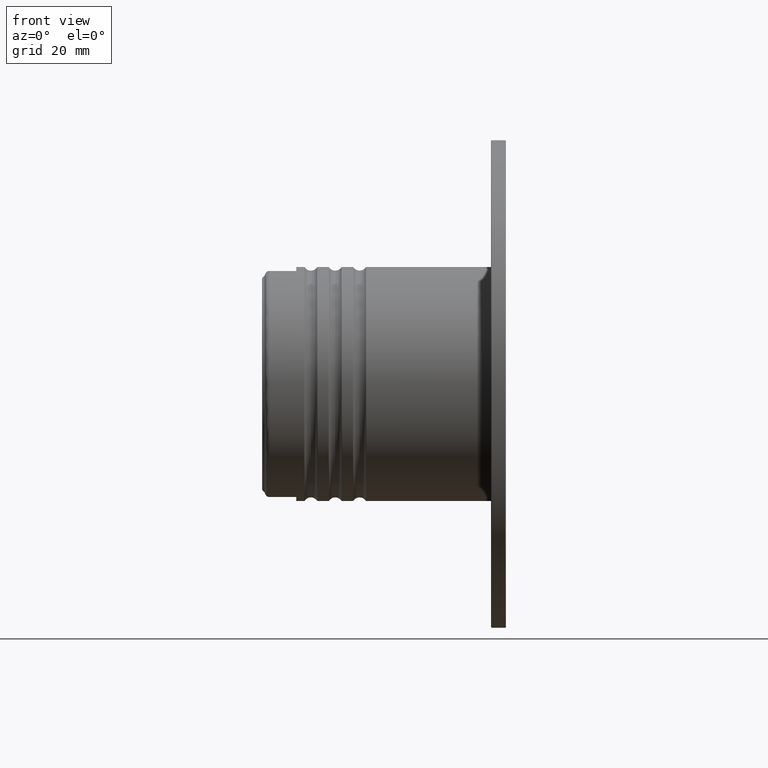
[diagram: clean part render]
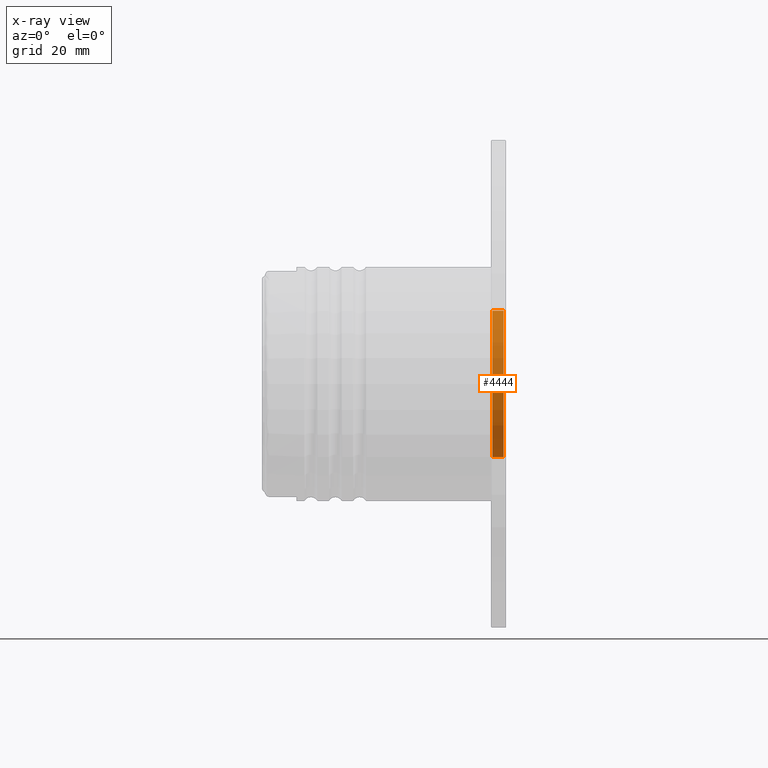
[diagram: x-ray — body ghosted, one internal face saturated and labeled with its STEP entity id]
A machine part, front view, then the same camera in x-ray: the body is ghosted and one INTERNAL B-rep face — a face not visible from any outside direction — is saturated and labeled: STEP entity #4444.
In plain terms, the highlighted cylindrical surface (partial cylindrical patch) has radius 15 mm, axis along (1, 0, 0).
Its self-contained STEP definition (entity closure, byte-faithful):
#541 = LINE ( 'NONE', #7155, #4712 ) ;
#946 = EDGE_CURVE ( 'NONE', #4936, #3952, #6172, .T. ) ;
#953 = CARTESIAN_POINT ( 'NONE',  ( -0.2000000000000000111, 0.0000000000000000000, 0.0000000000000000000 ) ) ;
#1272 = FACE_OUTER_BOUND ( 'NONE', #7010, .T. ) ;
#1397 = DIRECTION ( 'NONE',  ( 0.0000000000000000000, 0.0000000000000000000, -1.000000000000000000 ) ) ;
#1442 = AXIS2_PLACEMENT_3D ( 'NONE', #4267, #4702, #1397 ) ;
#1548 = DIRECTION ( 'NONE',  ( 1.000000000000000000, -0.0000000000000000000, -0.0000000000000000000 ) ) ;
#2043 = CARTESIAN_POINT ( 'NONE',  ( 0.0000000000000000000, 0.0000000000000000000, -15.00000000000000000 ) ) ;
#2874 = VECTOR ( 'NONE', #1548, 1000.000000000000000 ) ;
#2933 = CARTESIAN_POINT ( 'NONE',  ( -0.2000000000000000111, 1.836970198721029589E-15, 15.00000000000000000 ) ) ;
#2972 = ORIENTED_EDGE ( 'NONE', *, *, #5805, .T. ) ;
#3246 = EDGE_CURVE ( 'NONE', #3443, #3952, #6106, .T. ) ;
#3320 = AXIS2_PLACEMENT_3D ( 'NONE', #6803, #3535, #5199 ) ;
#3443 = VERTEX_POINT ( 'NONE', #6634 ) ;
#3535 = DIRECTION ( 'NONE',  ( 1.000000000000000000, -0.0000000000000000000, -0.0000000000000000000 ) ) ;
#3592 = ORIENTED_EDGE ( 'NONE', *, *, #3246, .T. ) ;
#3952 = VERTEX_POINT ( 'NONE', #6356 ) ;
#3999 = ORIENTED_EDGE ( 'NONE', *, *, #946, .F. ) ;
#4267 = CARTESIAN_POINT ( 'NONE',  ( -2.500000000000000000, 0.0000000000000000000, 0.0000000000000000000 ) ) ;
#4444 = ADVANCED_FACE ( 'NONE', ( #1272 ), #7115, .T. ) ;
#4701 = AXIS2_PLACEMENT_3D ( 'NONE', #953, #5421, #7055 ) ;
#4702 = DIRECTION ( 'NONE',  ( 1.000000000000000000, -0.0000000000000000000, -0.0000000000000000000 ) ) ;
#4712 = VECTOR ( 'NONE', #5020, 1000.000000000000000 ) ;
#4936 = VERTEX_POINT ( 'NONE', #2933 ) ;
#5020 = DIRECTION ( 'NONE',  ( 1.000000000000000000, -0.0000000000000000000, -0.0000000000000000000 ) ) ;
#5199 = DIRECTION ( 'NONE',  ( 0.0000000000000000000, 0.0000000000000000000, -1.000000000000000000 ) ) ;
#5421 = DIRECTION ( 'NONE',  ( 1.000000000000000000, -0.0000000000000000000, -0.0000000000000000000 ) ) ;
#5530 = CARTESIAN_POINT ( 'NONE',  ( -2.500000000000000000, 1.836970198721029589E-15, 15.00000000000000000 ) ) ;
#5805 = EDGE_CURVE ( 'NONE', #6955, #3443, #7017, .T. ) ;
#6106 = LINE ( 'NONE', #2043, #2874 ) ;
#6172 = CIRCLE ( 'NONE', #4701, 15.00000000000000000 ) ;
#6265 = EDGE_CURVE ( 'NONE', #6955, #4936, #541, .T. ) ;
#6356 = CARTESIAN_POINT ( 'NONE',  ( -0.2000000000000000111, 0.0000000000000000000, -15.00000000000000000 ) ) ;
#6634 = CARTESIAN_POINT ( 'NONE',  ( -2.500000000000000000, 0.0000000000000000000, -15.00000000000000000 ) ) ;
#6803 = CARTESIAN_POINT ( 'NONE',  ( 0.0000000000000000000, 0.0000000000000000000, 0.0000000000000000000 ) ) ;
#6955 = VERTEX_POINT ( 'NONE', #5530 ) ;
#7010 = EDGE_LOOP ( 'NONE', ( #7072, #2972, #3592, #3999 ) ) ;
#7017 = CIRCLE ( 'NONE', #1442, 15.00000000000000000 ) ;
#7055 = DIRECTION ( 'NONE',  ( 0.0000000000000000000, 0.0000000000000000000, -1.000000000000000000 ) ) ;
#7072 = ORIENTED_EDGE ( 'NONE', *, *, #6265, .F. ) ;
#7115 = CYLINDRICAL_SURFACE ( 'NONE', #3320, 15.00000000000000000 ) ;
#7155 = CARTESIAN_POINT ( 'NONE',  ( 0.0000000000000000000, 1.836970198721029589E-15, 15.00000000000000000 ) ) ;